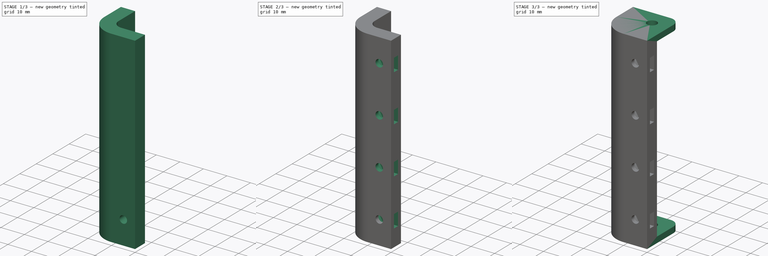
[diagram: build sequence overview — one tinted view per stage of 3, left to right]
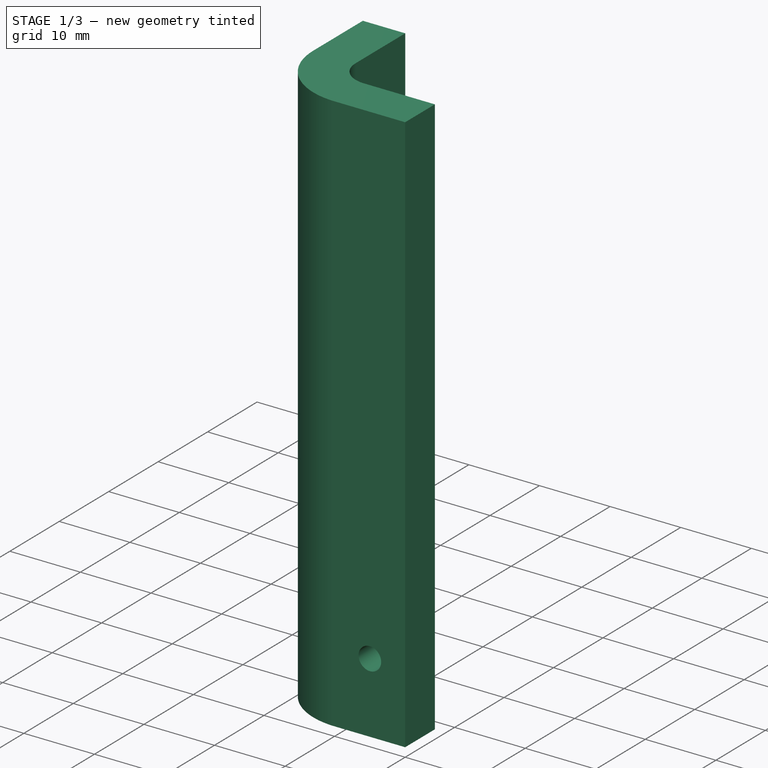
[diagram: stage 1 of 3 — iso view after this stage's code; geometry added in this stage tinted green]
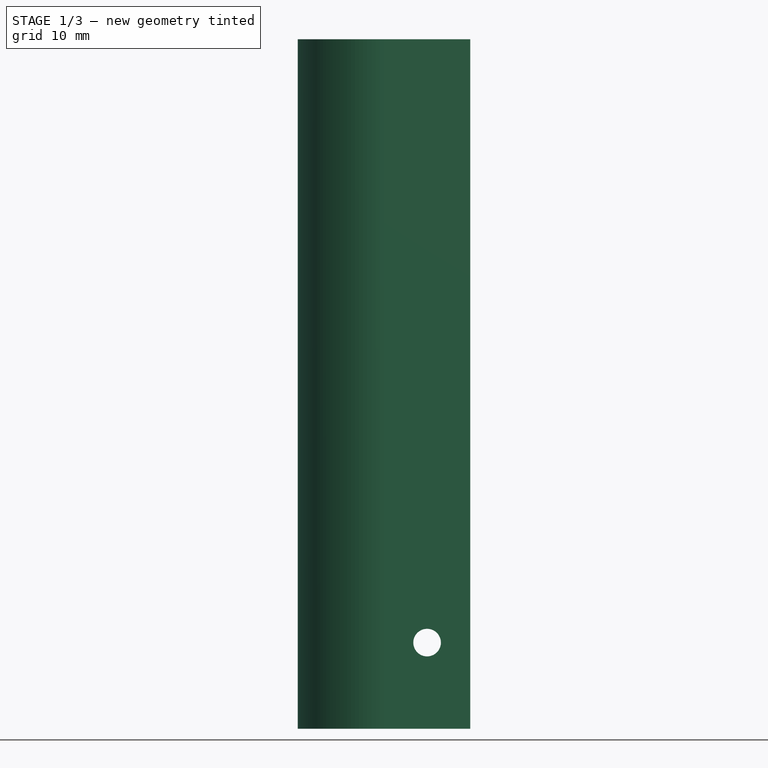
[diagram: stage 1 of 3 — front view after this stage's code; geometry added in this stage tinted green]
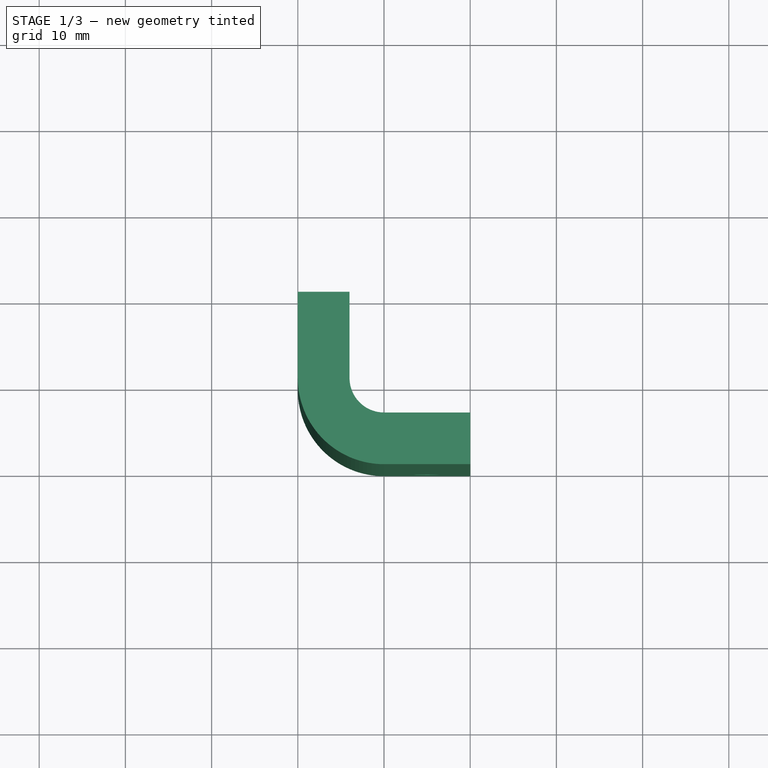
[diagram: stage 1 of 3 — top view after this stage's code; geometry added in this stage tinted green]
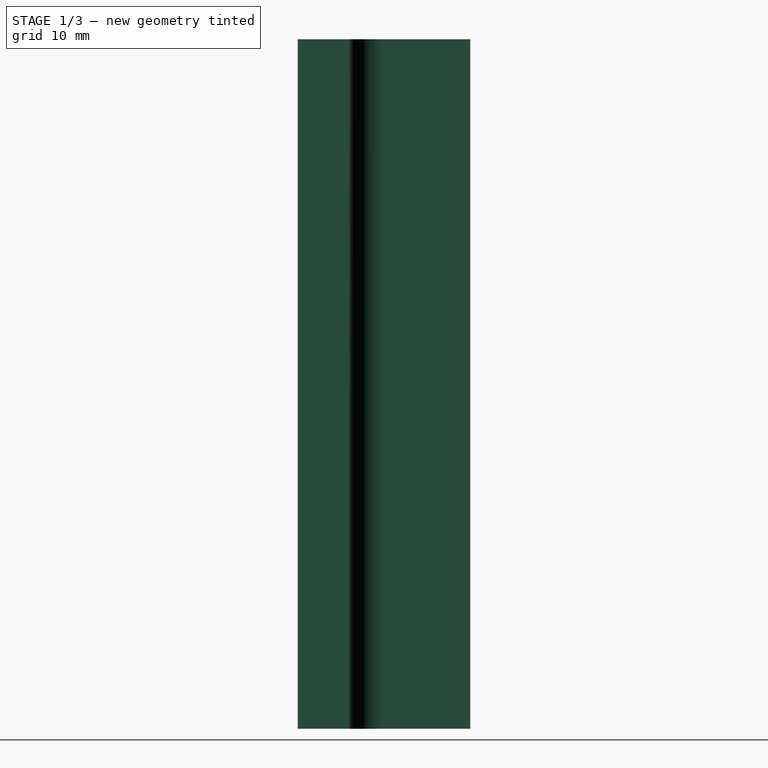
[diagram: stage 1 of 3 — right view after this stage's code; geometry added in this stage tinted green]
FCSTD DOCUMENT  (FreeCAD 1.0R39109 (Git))
Label: spacer_10x80
License: All rights reserved
LicenseURL: http://en.wikipedia.org/wiki/All_rights_reserved
objects: Sketcher::SketchObject×6, PartDesign::Plane×3, PartDesign::Pad×2, PartDesign::Pocket×2, PartDesign::Mirrored×2, PartDesign::LinearPattern×1, PartDesign::MultiTransform×1, PartDesign::Body×1
note: 36 computed .brp shape members not serialized (recipe doc carries the construction recipe); baked Part::Feature solids carry a one-line shape summary decoded from their .brp

FEATURE [Sketcher::SketchObject] Sketch
  ArcFitTolerance = 1e-06
  AttachmentSupport = -> [XY_Plane]
  FullyConstrained = true
  MakeInternals = false
  MapMode = 5
  sketch-geometry (22):
    g0: ArcOfCircle CenterX=0 CenterY=0 CenterZ=0 NormalX=0 NormalY=0 NormalZ=1 AngleXU=0 Radius=10 StartAngle=3.14159 EndAngle=4.71239
    g1: LineSegment StartX=-10 StartY=1.2e-15 StartZ=0 EndX=-10 EndY=10 EndZ=0
    g2: LineSegment StartX=-10 StartY=10 StartZ=0 EndX=-4 EndY=10 EndZ=0
    g3: LineSegment StartX=-4 StartY=10 StartZ=0 EndX=-4 EndY=0 EndZ=0
    g4: ArcOfCircle CenterX=2e-16 CenterY=0 CenterZ=0 NormalX=0 NormalY=0 NormalZ=1 AngleXU=0 Radius=4 StartAngle=3.14159 EndAngle=4.71239
    g5: LineSegment StartX=-5e-16 StartY=-4 StartZ=0 EndX=10 EndY=-4 EndZ=0
    g6: LineSegment StartX=10 StartY=-4 StartZ=0 EndX=10 EndY=-10 EndZ=0
    g7: LineSegment StartX=10 StartY=-10 StartZ=0 EndX=-1.8e-15 EndY=-10 EndZ=0
    g8: LineSegment [constr] StartX=1.8 StartY=-5.75 StartZ=0 EndX=1.8 EndY=-8.25 EndZ=0
    g9: LineSegment [constr] StartX=1.8 StartY=-8.25 StartZ=0 EndX=8.2 EndY=-8.25 EndZ=0
    g10: LineSegment [constr] StartX=8.2 StartY=-8.25 StartZ=0 EndX=8.2 EndY=-5.75 EndZ=0
    g11: LineSegment [constr] StartX=8.2 StartY=-5.75 StartZ=0 EndX=1.8 EndY=-5.75 EndZ=0
    g12: GeomPoint [constr] X=5 Y=-7 Z=0
    g13: LineSegment [constr] StartX=-8.25 StartY=8.2 StartZ=0 EndX=-8.25 EndY=1.8 EndZ=0
    g14: LineSegment [constr] StartX=-8.25 StartY=1.8 StartZ=0 EndX=-5.75 EndY=1.8 EndZ=0
    g15: LineSegment [constr] StartX=-5.75 StartY=1.8 StartZ=0 EndX=-5.75 EndY=8.2 EndZ=0
    g16: LineSegment [constr] StartX=-5.75 StartY=8.2 StartZ=0 EndX=-8.25 EndY=8.2 EndZ=0
    g17: GeomPoint [constr] X=-7 Y=5 Z=0
    g18: GeomPoint X=5 Y=-4 Z=0
    g19: GeomPoint X=10 Y=-7 Z=0
    g20: GeomPoint X=-4 Y=5 Z=0
    g21: GeomPoint X=-7 Y=10 Z=0
  constraints (54):
    c: Coincident(g0,g-1)
    c: PointOnObject(g0,g-1)
    c: PointOnObject(g0,g-2)
    c: Tangent(g0,g1) = 1.5708
    c: Coincident(g1,g2)
    c: Horizontal(g2)
    c: Coincident(g2,g3)
    c: PointOnObject(g3,g-1)
    c: Vertical(g3)
    c: Tangent(g3,g4) = -1.5708
    c: PointOnObject(g4,g-2)
    c: Coincident(g4,g5)
    c: Horizontal(g5)
    c: Coincident(g5,g6)
    c: Coincident(g6,g7)
    c: Coincident(g7,g0)
    c: Horizontal(g7)
    c: Equal(g2,g6)
    c: Vertical(g6)
    c: Equal(g5,g3)
    c: Radius(g0) = 10
    c: DistanceY(g6,g6) = 6
    c: DistanceX(g7,g7) = 10
    c: Coincident(g8,g9)
    c: Coincident(g9,g10)
    c: Coincident(g10,g11)
    c: Coincident(g11,g8)
    c: Vertical(g8)
    c: Vertical(g10)
    c: Horizontal(g9)
    c: Horizontal(g11)
    c: Symmetric(g10,g8,g12)
    c: Coincident(g13,g14)
    c: Coincident(g14,g15)
    c: Coincident(g15,g16)
    c: Coincident(g16,g13)
    c: Vertical(g13)
    c: Vertical(g15)
    c: Horizontal(g14)
    c: Horizontal(g16)
    c: Symmetric(g15,g13,g17)
    c: Symmetric(g5,g5,g18)
    c: Symmetric(g6,g6,g19)
    c: Symmetric(g3,g3,g20)
    c: Symmetric(g2,g2,g21)
    c: Vertical(g17,g21)
    c: Horizontal(g20,g17)
    c: Horizontal(g12,g19)
    c: Vertical(g12,g18)
    c: DistanceY(g10,g10) = 2.5
    c: DistanceX(g11,g11) = 6.4
    c: Equal(g10,g14)
    c: Equal(g11,g15)
    c: Radius(g4) = 4
FEATURE [PartDesign::Pad] Pad
  Direction = (0,0,1)
  Length = 80
  Length2 = 10
  Profile = -> Sketch
  ReferenceAxis = -> Sketch [N_Axis]
  Refine = true
  Suppressed = false
  Type = 0
FEATURE [Sketcher::SketchObject] Sketch001
  ArcFitTolerance = 1e-06
  AttachmentSupport = -> [Pad]
  ExternalGeometry = -> [Pad]
  FullyConstrained = true
  MakeInternals = false
  MapMode = 5
  Placement = pos=(0,-10,0) rot=(1,0,0;1.5708rad)
  sketch-geometry (2):
    g0: Circle CenterX=5 CenterY=10 CenterZ=0 NormalX=0 NormalY=0 NormalZ=1 AngleXU=0 Radius=1.6
    g1: GeomPoint X=5 Y=0 Z=0
  constraints (4):
    c: Radius(g0) = 1.6
    c: Symmetric(g-3,g-3,g1)
    c: Vertical(g1,g0)
    c: DistanceY(g1,g0) = 10
FEATURE [PartDesign::Pocket] Pocket
  BaseFeature = -> Pad
  Direction = (0,1,-2e-16)
  Length = 5
  Length2 = 5
  Profile = -> Sketch001
  ReferenceAxis = -> Sketch001 [N_Axis]
  Refine = true
  Suppressed = false
  Type = 1
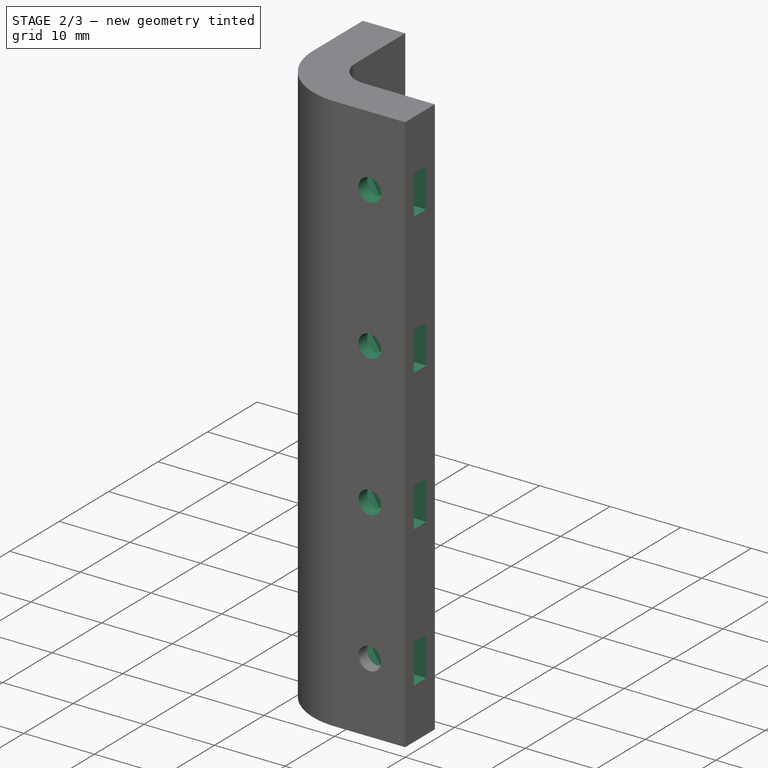
[diagram: stage 2 of 3 — iso view after this stage's code; geometry added in this stage tinted green]
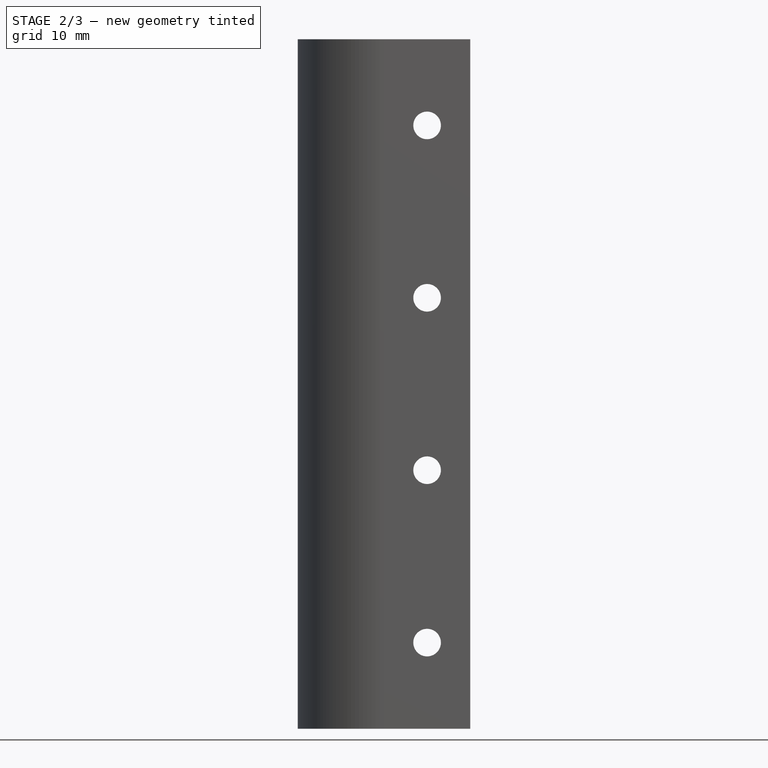
[diagram: stage 2 of 3 — front view after this stage's code; geometry added in this stage tinted green]
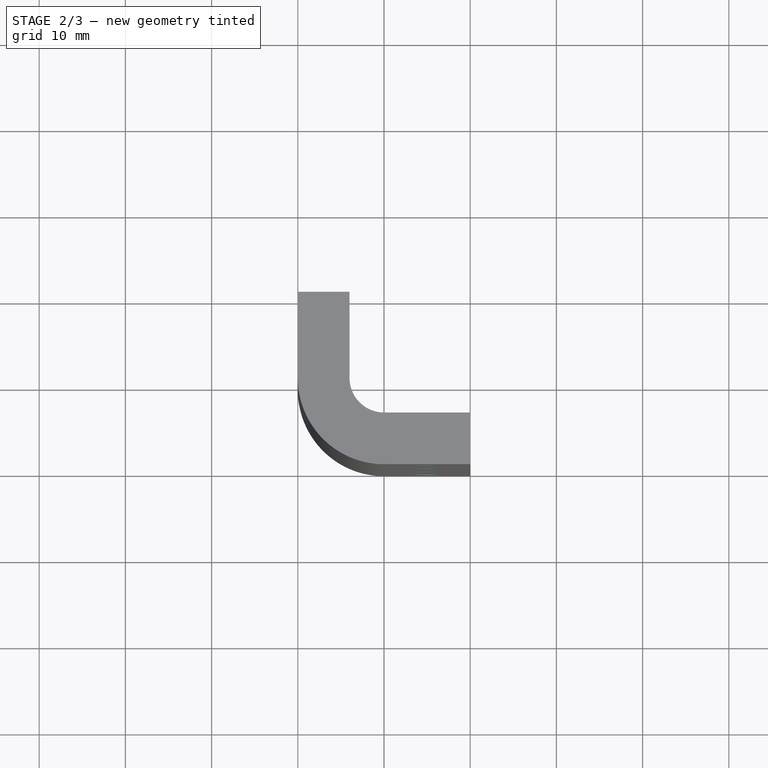
[diagram: stage 2 of 3 — top view after this stage's code; geometry added in this stage tinted green]
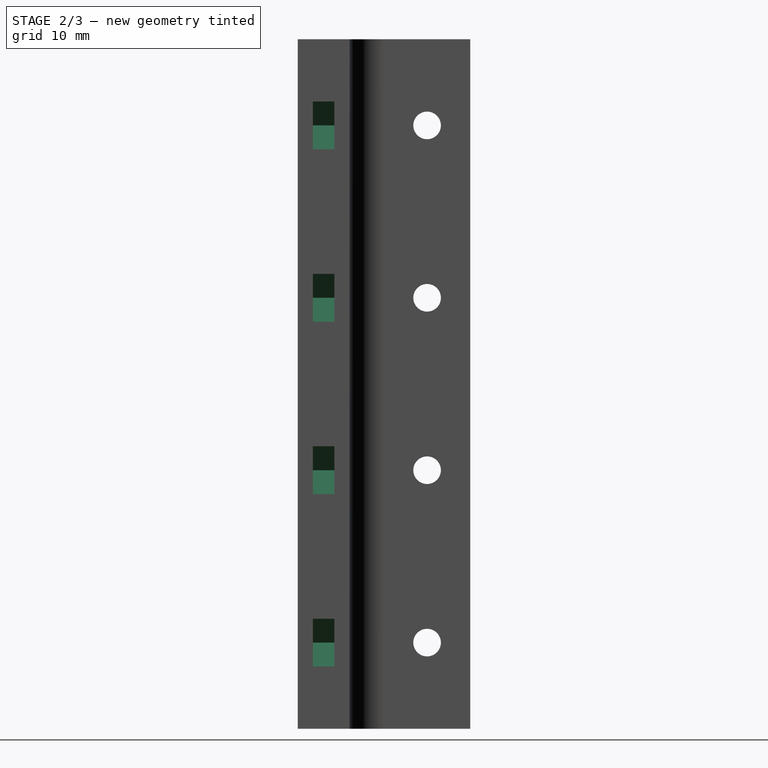
[diagram: stage 2 of 3 — right view after this stage's code; geometry added in this stage tinted green]
FEATURE [Sketcher::SketchObject] Sketch002
  ArcFitTolerance = 1e-06
  AttachmentSupport = -> [Pocket]
  ExternalGeometry = -> [Pocket]
  FullyConstrained = true
  MakeInternals = false
  MapMode = 5
  Placement = pos=(10,0,0) rot=(0.57735,0.57735,0.57735;2.0944rad)
  sketch-geometry (1):
    g0: GeomPoint X=-7 Y=0 Z=0
  constraints (1):
    c: Symmetric(g-3,g-3,g0)
FEATURE [PartDesign::Plane] DatumPlane
  AttachmentSupport = -> [XZ_Plane,Sketch002]
  Length = 64.4914
  MapMode = 53
  Placement = pos=(0,-7,-1.6e-15) rot=(1,0,0;1.5708rad)
  ResizeMode = 0
  Width = 119.491
FEATURE [Sketcher::SketchObject] Sketch003
  ArcFitTolerance = 1e-06
  AttachmentSupport = -> [DatumPlane]
  ExternalGeometry = -> [Pocket]
  FullyConstrained = true
  MakeInternals = false
  MapMode = 5
  Placement = pos=(0,-7,-1.6e-15) rot=(1,0,0;1.5708rad)
  sketch-geometry (12):
    g0: LineSegment [constr] StartX=6.6 StartY=7.22872 StartZ=0 EndX=8.2 EndY=10 EndZ=0
    g1: LineSegment [constr] StartX=8.2 StartY=10 StartZ=0 EndX=6.6 EndY=12.7713 EndZ=0
    g2: LineSegment [constr] StartX=6.6 StartY=12.7713 StartZ=0 EndX=3.4 EndY=12.7713 EndZ=0
    g3: LineSegment [constr] StartX=3.4 StartY=12.7713 StartZ=0 EndX=1.8 EndY=10 EndZ=0
    g4: LineSegment [constr] StartX=1.8 StartY=10 StartZ=0 EndX=3.4 EndY=7.22872 EndZ=0
    g5: LineSegment [constr] StartX=3.4 StartY=7.22872 StartZ=0 EndX=6.6 EndY=7.22872 EndZ=0
    g6: Circle [constr] CenterX=5 CenterY=10 CenterZ=0 NormalX=0 NormalY=0 NormalZ=1 AngleXU=0 Radius=3.2
    g7: LineSegment StartX=10 StartY=7.22872 StartZ=0 EndX=3.4 EndY=7.22872 EndZ=0
    g8: LineSegment StartX=3.4 StartY=7.22872 StartZ=0 EndX=1.8 EndY=10 EndZ=0
    g9: LineSegment StartX=1.8 StartY=10 StartZ=0 EndX=3.4 EndY=12.7713 EndZ=0
    g10: LineSegment StartX=3.4 StartY=12.7713 StartZ=0 EndX=10 EndY=12.7713 EndZ=0
    g11: LineSegment StartX=10 StartY=12.7713 StartZ=0 EndX=10 EndY=7.22872 EndZ=0
  constraints (28):
    c: Coincident(g0,g1)
    c: Coincident(g1,g2)
    c: Coincident(g2,g3)
    c: Coincident(g3,g4)
    c: Coincident(g4,g5)
    c: Coincident(g5,g0)
    c: Equal(g0, g1-g5) x5
    c: PointOnObject(g0,g6)
    c: PointOnObject(g1,g6)
    c: PointOnObject(g2,g6)
    c: PointOnObject(g3,g6)
    c: PointOnObject(g4,g6)
    c: PointOnObject(g5,g6)
    c: Coincident(g6,g-3)
    c: Horizontal(g5)
    c: DistanceX(g3,g0) = 6.4
    c: Coincident(g7,g4)
    c: Horizontal(g7)
    c: Coincident(g7,g8)
    c: Coincident(g8,g3)
    c: Coincident(g8,g9)
    c: Coincident(g9,g2)
    c: Coincident(g9,g10)
    c: Horizontal(g10)
    c: Coincident(g10,g11)
    c: Coincident(g11,g7)
    c: Vertical(g11)
    c: PointOnObject(g10,g-4)
FEATURE [PartDesign::Pocket] Pocket001
  BaseFeature = -> Pocket
  Direction = (0,1,-2e-16)
  Length = 1.25
  Length2 = 1.25
  Profile = -> Sketch003
  ReferenceAxis = -> Sketch003 [N_Axis]
  Refine = true
  Suppressed = false
  Type = 4
FEATURE [PartDesign::Plane] DatumPlane001
  AttachmentOffset = pos=(0,0,0) rot=(0,1,0;0.785398rad)
  AttachmentSupport = -> [XZ_Plane]
  Length = 87.9439
  MapMode = 5
  Placement = pos=(0,0,0) rot=(0.862856,0.357407,0.357407;1.71777rad)
  ResizeMode = 0
  Width = 122.233
FEATURE [PartDesign::LinearPattern] LinearPattern
  Direction = -> Z_Axis
  Length = 60
  Mode = 1
  Occurrences = 4
  Offset = 20
  Refine = true
  Suppressed = false
  TransformMode = 0
FEATURE [PartDesign::Mirrored] Mirrored
  MirrorPlane = -> DatumPlane001
  Refine = true
  Suppressed = false
  TransformMode = 0
FEATURE [PartDesign::MultiTransform] MultiTransform
  BaseFeature = -> Pocket001
  Originals = -> [Pocket,Pocket001]
  Refine = true
  Suppressed = false
  TransformMode = 0
  Transformations = -> [LinearPattern,Mirrored]
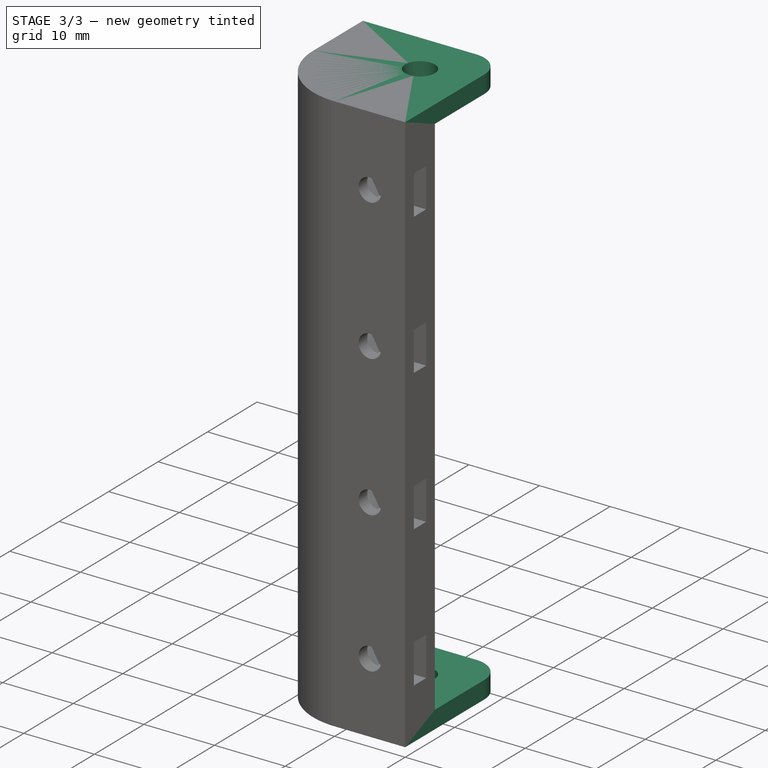
[diagram: stage 3 of 3 — iso view after this stage's code; geometry added in this stage tinted green]
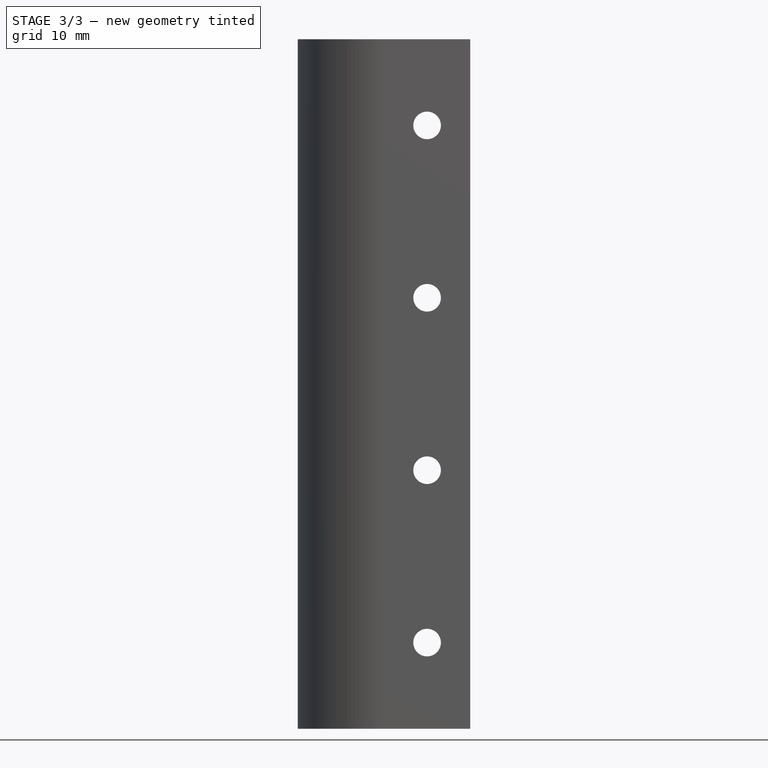
[diagram: stage 3 of 3 — front view after this stage's code; geometry added in this stage tinted green]
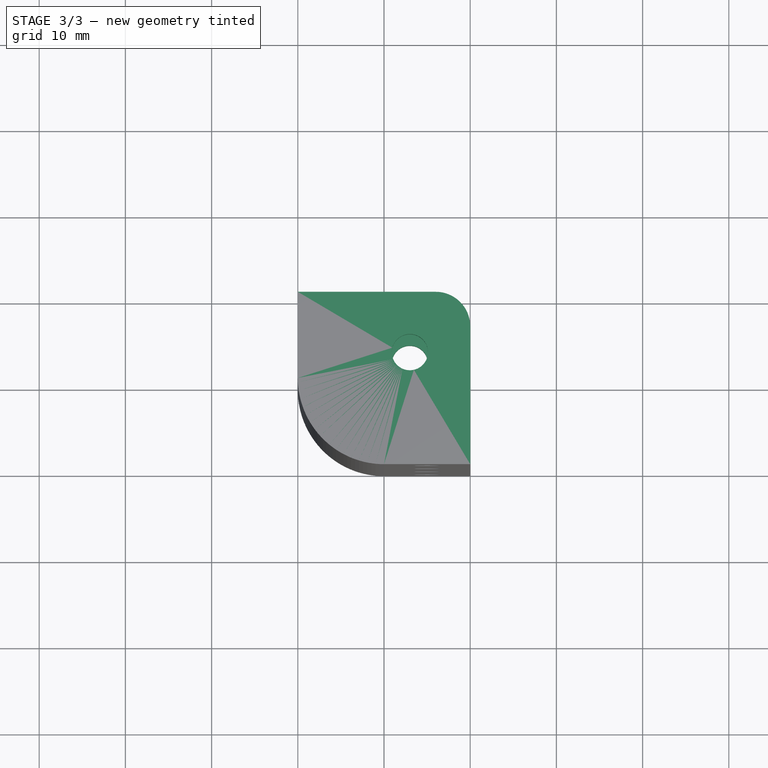
[diagram: stage 3 of 3 — top view after this stage's code; geometry added in this stage tinted green]
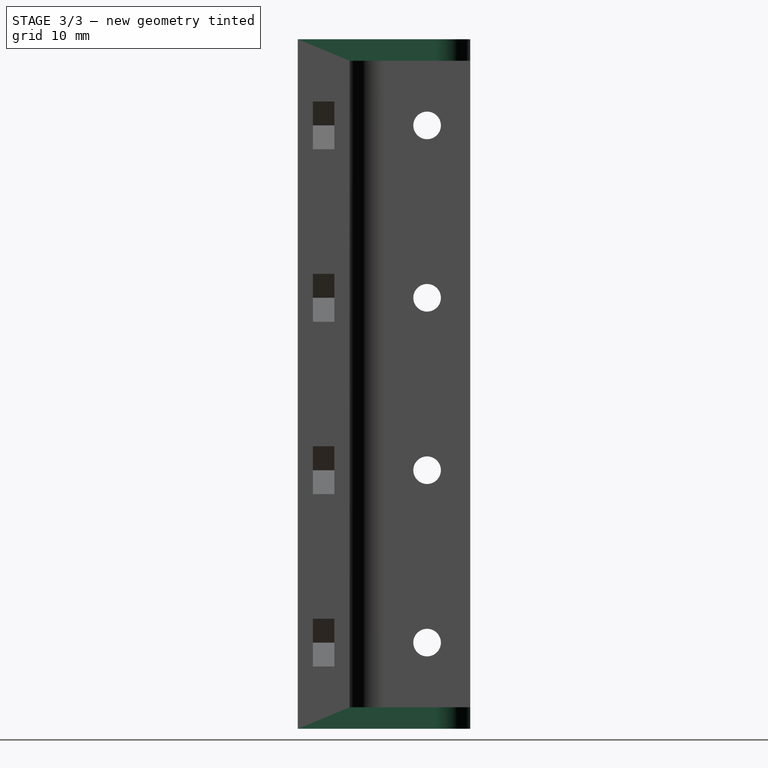
[diagram: stage 3 of 3 — right view after this stage's code; geometry added in this stage tinted green]
FEATURE [Sketcher::SketchObject] Sketch004
  ArcFitTolerance = 1e-06
  AttachmentSupport = -> [MultiTransform]
  ExternalGeometry = -> [MultiTransform]
  FullyConstrained = true
  MakeInternals = false
  MapMode = 5
  Placement = pos=(0,0,0) rot=(1,0,0;3.14159rad)
  sketch-geometry (8):
    g0: ArcOfCircle CenterX=6.743e-13 CenterY=-8.87e-14 CenterZ=0 NormalX=0 NormalY=0 NormalZ=1 AngleXU=0 Radius=4 StartAngle=1.5708 EndAngle=3.14159
    g1: LineSegment StartX=2.047e-13 StartY=4 StartZ=0 EndX=10 EndY=4 EndZ=0
    g2: LineSegment StartX=10 StartY=4 StartZ=0 EndX=10 EndY=-6 EndZ=0
    g3: LineSegment StartX=6 StartY=-10 StartZ=0 EndX=-4 EndY=-10 EndZ=0
    g4: LineSegment StartX=-4 StartY=-10 StartZ=0 EndX=-4 EndY=-4.032e-13 EndZ=0
    g5: Circle CenterX=3 CenterY=-3 CenterZ=0 NormalX=0 NormalY=0 NormalZ=1 AngleXU=0 Radius=2.1
    g6: ArcOfCircle CenterX=6 CenterY=-6 CenterZ=0 NormalX=0 NormalY=0 NormalZ=1 AngleXU=0 Radius=4 StartAngle=4.71239 EndAngle=6.28319
    g7: GeomPoint [constr] X=10 Y=-10 Z=0
  constraints (17):
    c: Tangent(g-5,g0) = 1.5708
    c: Coincident(g0,g-4)
    c: Tangent(g0,g1) = 1.5708
    c: Coincident(g1,g2)
    c: Vertical(g2)
    c: Coincident(g3,g-5)
    c: Horizontal(g3)
    c: Coincident(g3,g4)
    c: Coincident(g4,g0)
    c: Vertical(g1,g-6)
    c: PointOnObject(g7,g2)
    c: PointOnObject(g7,g3)
    c: Tangent(g2,g6) = 1.5708
    c: Tangent(g3,g6) = 1.5708
    c: Equal(g6,g0)
    c: Symmetric(g6,g0,g5)
    c: Radius(g5) = 2.1
FEATURE [PartDesign::Pad] Pad001
  BaseFeature = -> MultiTransform
  Direction = (0,0,-1)
  Length = 2.5
  Length2 = 10
  Profile = -> Sketch004
  ReferenceAxis = -> Sketch004 [N_Axis]
  Refine = true
  Reversed = true
  Suppressed = false
  Type = 0
FEATURE [Sketcher::SketchObject] Sketch005
  ArcFitTolerance = 1e-06
  AttachmentSupport = -> [Pad001]
  ExternalGeometry = -> [Pad001]
  FullyConstrained = true
  MakeInternals = false
  MapMode = 5
  Placement = pos=(10,1.25e-13,-4.6e-15) rot=(0.57735,0.57735,0.57735;2.0944rad)
  sketch-geometry (1):
    g0: GeomPoint X=-10 Y=40 Z=0
  constraints (1):
    c: Symmetric(g-3,g-3,g0)
FEATURE [PartDesign::Plane] DatumPlane002
  AttachmentSupport = -> [Sketch005]
  Length = 60
  MapMode = 1
  Placement = pos=(10,-10,40) rot=(0,0,1;0rad)
  ResizeMode = 0
  Width = 60
FEATURE [PartDesign::Mirrored] Mirrored001
  BaseFeature = -> Pad001
  MirrorPlane = -> DatumPlane002
  Originals = -> [Pad001]
  Refine = true
  Suppressed = false
  TransformMode = 0
FEATURE [PartDesign::Body] Body
  AllowCompound = false
  Group = -> [Sketch,Pad,Sketch001,Pocket,Sketch002,DatumPlane,Sketch003,Pocket001,DatumPlane001,MultiTransform,LinearPattern,Mirrored,Sketch004,Pad001,Sketch005,DatumPlane002,Mirrored001]
  Origin = -> Origin
  Tip = -> Mirrored001
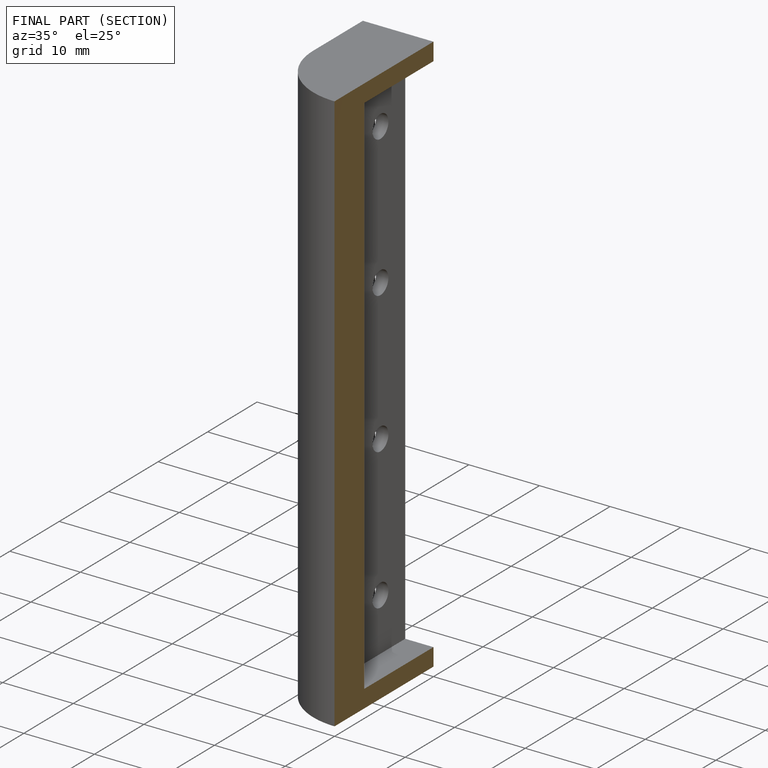
[diagram: finished part — half-section view (interior)]
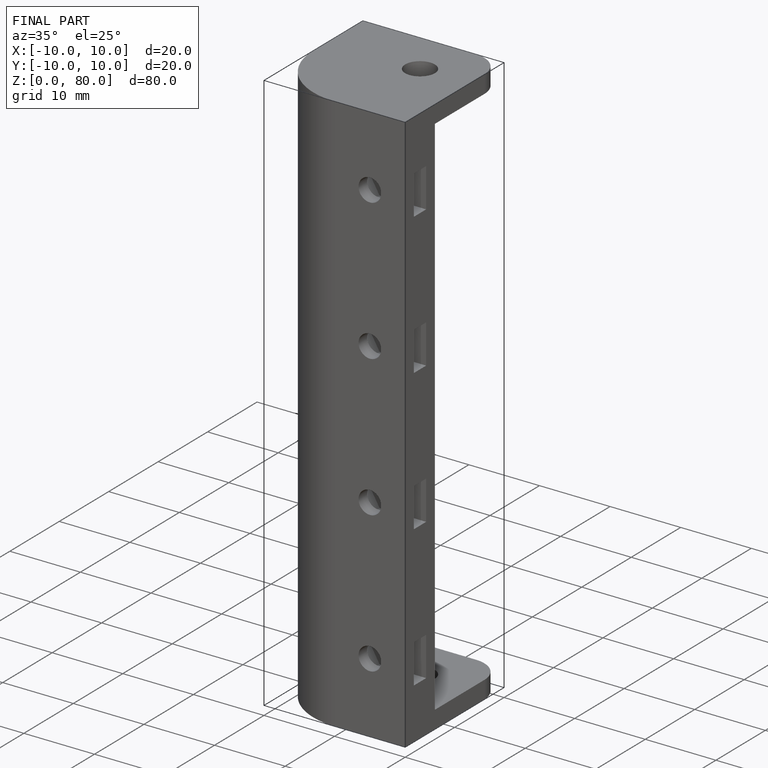
[diagram: finished part — iso view with bounding-box wireframe]
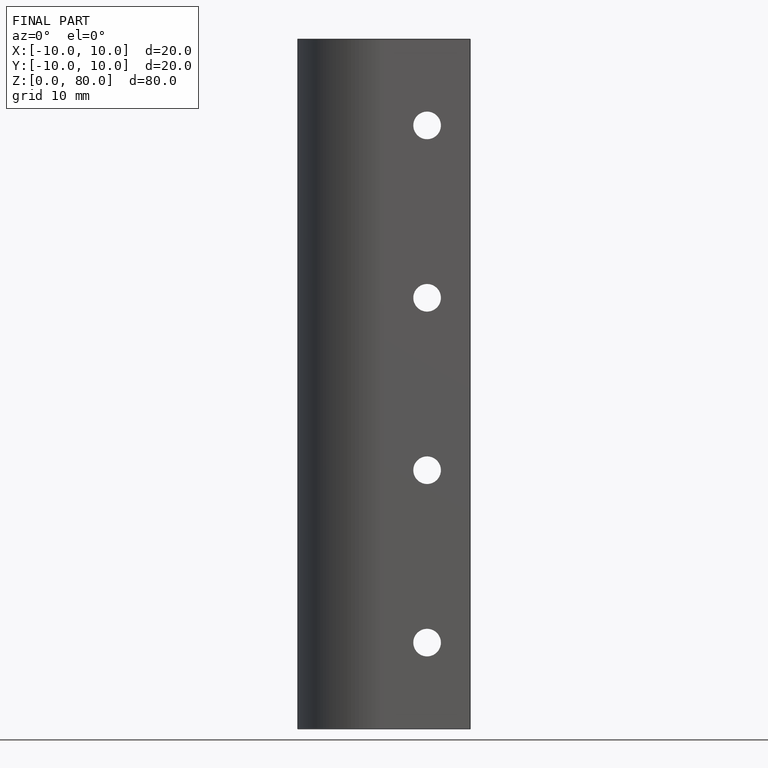
[diagram: finished part — front view with bounding-box wireframe]
